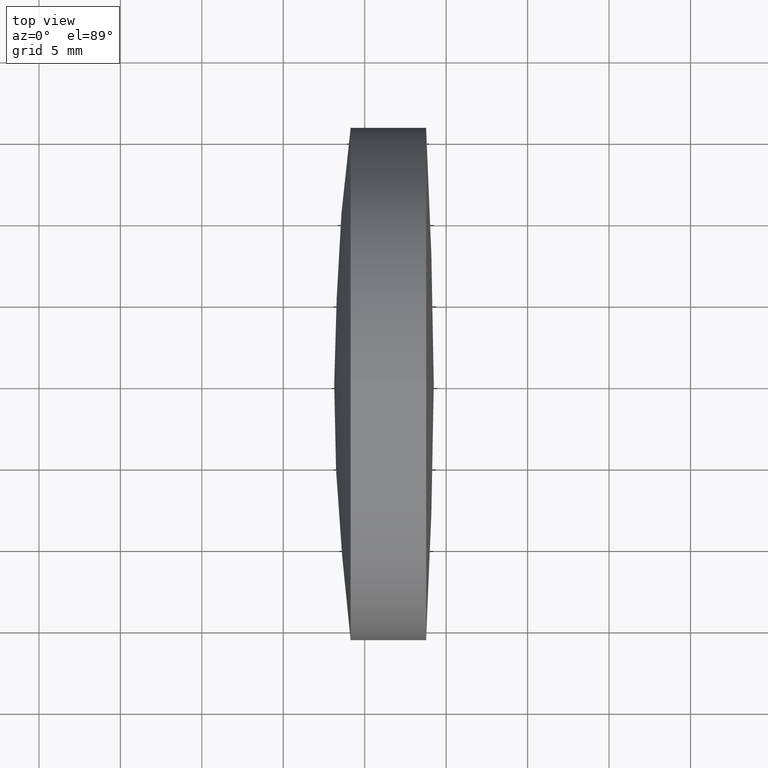
[diagram: clean part render]
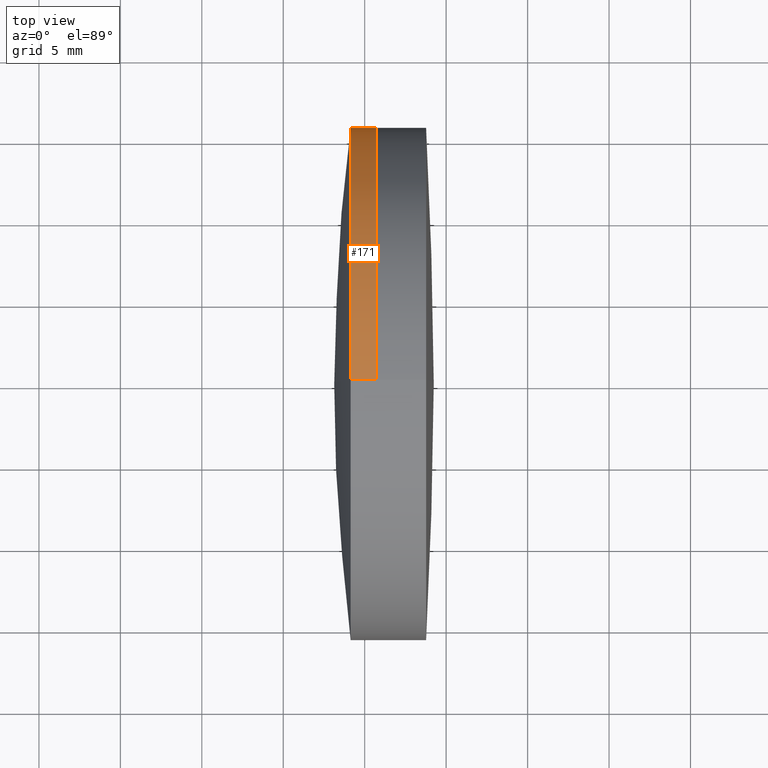
[diagram: same view with one face highlighted and labeled with its STEP entity id]
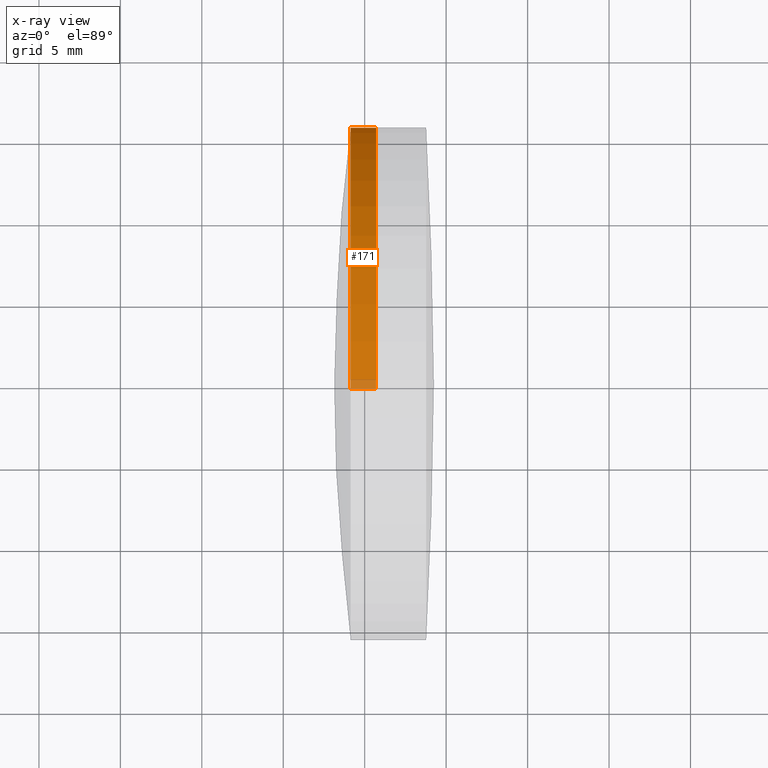
[diagram: x-ray of the same camera — body ghosted, the highlighted face saturated]
A machine part, top view. The second image highlights one B-rep face of the part: STEP entity #171.
The next image is the same camera in x-ray: the body ghosted, the highlighted face saturated — about 3% of this face is hidden behind the body in this view.
In plain terms, the highlighted cylindrical surface (partial cylindrical patch) has radius 15.75 mm, axis along (-1, -0, -0).
Its self-contained STEP definition (entity closure, byte-faithful):
#2 = VERTEX_POINT ( 'NONE', #147 ) ;
#12 = LINE ( 'NONE', #311, #223 ) ;
#14 = DIRECTION ( 'NONE',  ( -1.000000000000000000, -0.0000000000000000000, -0.0000000000000000000 ) ) ;
#21 = CARTESIAN_POINT ( 'NONE',  ( 260.6997343511442300, 0.0000000000000000000, 0.0000000000000000000 ) ) ;
#30 = ORIENTED_EDGE ( 'NONE', *, *, #299, .T. ) ;
#67 = DIRECTION ( 'NONE',  ( -1.000000000000000000, -0.0000000000000000000, -0.0000000000000000000 ) ) ;
#68 = AXIS2_PLACEMENT_3D ( 'NONE', #150, #115, #205 ) ;
#87 = VERTEX_POINT ( 'NONE', #140 ) ;
#93 = DIRECTION ( 'NONE',  ( -1.000000000000000000, -0.0000000000000000000, -0.0000000000000000000 ) ) ;
#101 = CARTESIAN_POINT ( 'NONE',  ( 260.6997343511442300, 0.0000000000000000000, 15.75000000000000000 ) ) ;
#106 = EDGE_CURVE ( 'NONE', #114, #230, #111, .T. ) ;
#108 = VECTOR ( 'NONE', #67, 1000.000000000000000 ) ;
#111 = CIRCLE ( 'NONE', #237, 15.75000000000000000 ) ;
#114 = VERTEX_POINT ( 'NONE', #101 ) ;
#115 = DIRECTION ( 'NONE',  ( -1.000000000000000000, -0.0000000000000000000, -0.0000000000000000000 ) ) ;
#121 = AXIS2_PLACEMENT_3D ( 'NONE', #206, #14, #178 ) ;
#128 = FACE_OUTER_BOUND ( 'NONE', #318, .T. ) ;
#133 = CYLINDRICAL_SURFACE ( 'NONE', #68, 15.75000000000000000 ) ;
#137 = EDGE_CURVE ( 'NONE', #114, #87, #212, .T. ) ;
#140 = CARTESIAN_POINT ( 'NONE',  ( 259.1360932977123100, -1.928818708657084900E-015, 15.75000000000002800 ) ) ;
#147 = CARTESIAN_POINT ( 'NONE',  ( 259.1360932977123100, 0.0000000000000000000, -15.75000000000002800 ) ) ;
#150 = CARTESIAN_POINT ( 'NONE',  ( 124.5233095260452400, 0.0000000000000000000, 0.0000000000000000000 ) ) ;
#171 = ADVANCED_FACE ( 'NONE', ( #128 ), #133, .T. ) ;
#172 = CARTESIAN_POINT ( 'NONE',  ( 260.6997343511442300, 1.928818708657081300E-015, -15.75000000000000000 ) ) ;
#178 = DIRECTION ( 'NONE',  ( 0.0000000000000000000, 0.0000000000000000000, 1.000000000000000000 ) ) ;
#187 = DIRECTION ( 'NONE',  ( -1.000000000000000000, -0.0000000000000000000, -0.0000000000000000000 ) ) ;
#193 = ORIENTED_EDGE ( 'NONE', *, *, #106, .T. ) ;
#205 = DIRECTION ( 'NONE',  ( 0.0000000000000000000, 0.0000000000000000000, 1.000000000000000000 ) ) ;
#206 = CARTESIAN_POINT ( 'NONE',  ( 259.1360932977123100, 0.0000000000000000000, 0.0000000000000000000 ) ) ;
#212 = LINE ( 'NONE', #214, #108 ) ;
#214 = CARTESIAN_POINT ( 'NONE',  ( 124.5233095260452400, 0.0000000000000000000, 15.75000000000000000 ) ) ;
#223 = VECTOR ( 'NONE', #93, 1000.000000000000000 ) ;
#230 = VERTEX_POINT ( 'NONE', #172 ) ;
#237 = AXIS2_PLACEMENT_3D ( 'NONE', #21, #187, #343 ) ;
#269 = CIRCLE ( 'NONE', #121, 15.75000000000000000 ) ;
#299 = EDGE_CURVE ( 'NONE', #230, #2, #12, .T. ) ;
#306 = ORIENTED_EDGE ( 'NONE', *, *, #137, .F. ) ;
#308 = ORIENTED_EDGE ( 'NONE', *, *, #320, .F. ) ;
#311 = CARTESIAN_POINT ( 'NONE',  ( 124.5233095260452400, 1.928818708657081300E-015, -15.75000000000000000 ) ) ;
#318 = EDGE_LOOP ( 'NONE', ( #193, #30, #308, #306 ) ) ;
#320 = EDGE_CURVE ( 'NONE', #87, #2, #269, .T. ) ;
#343 = DIRECTION ( 'NONE',  ( 0.0000000000000000000, 0.0000000000000000000, 1.000000000000000000 ) ) ;